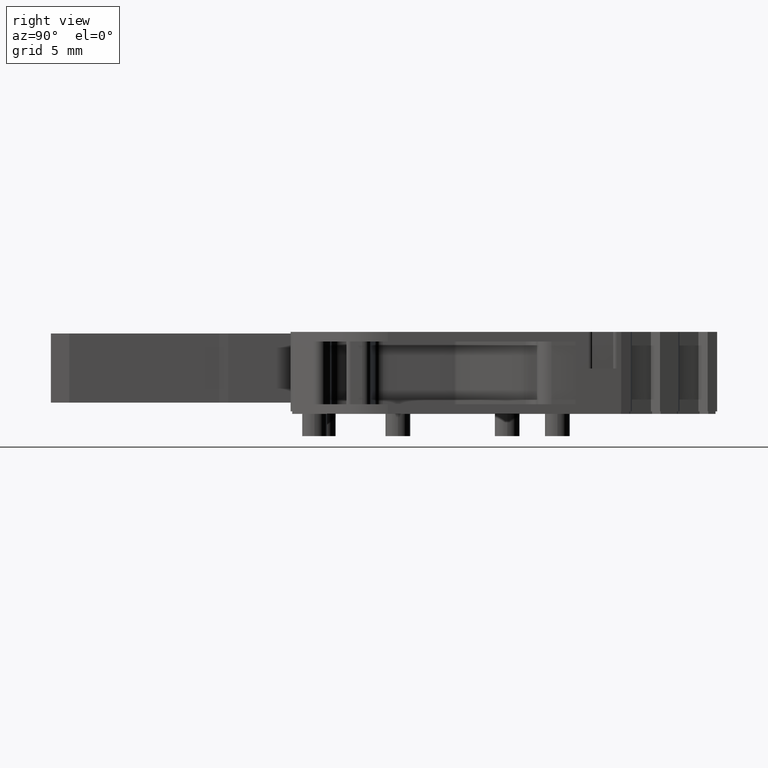
[diagram: clean part render]
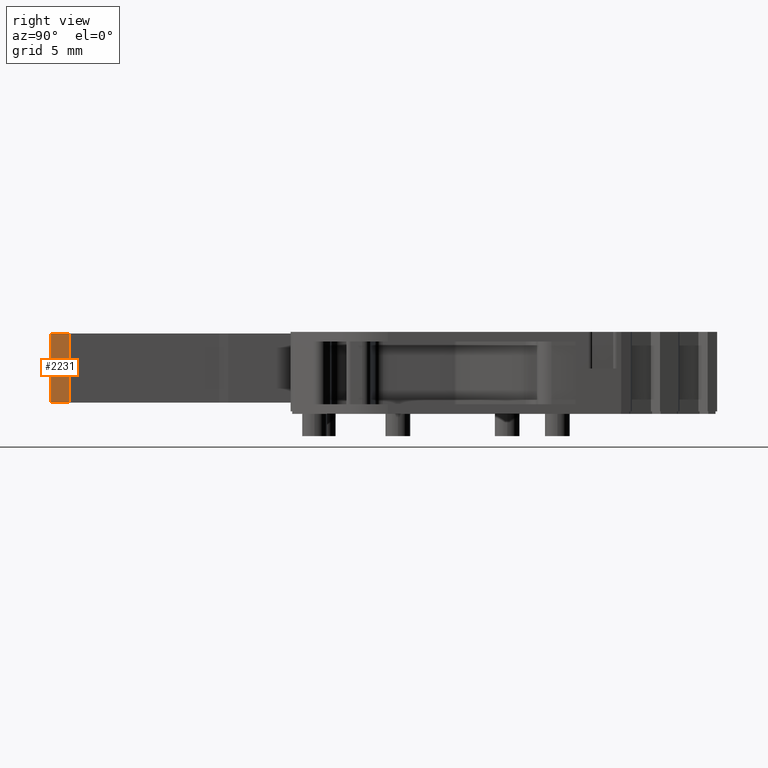
[diagram: same view with one face highlighted and labeled with its STEP entity id]
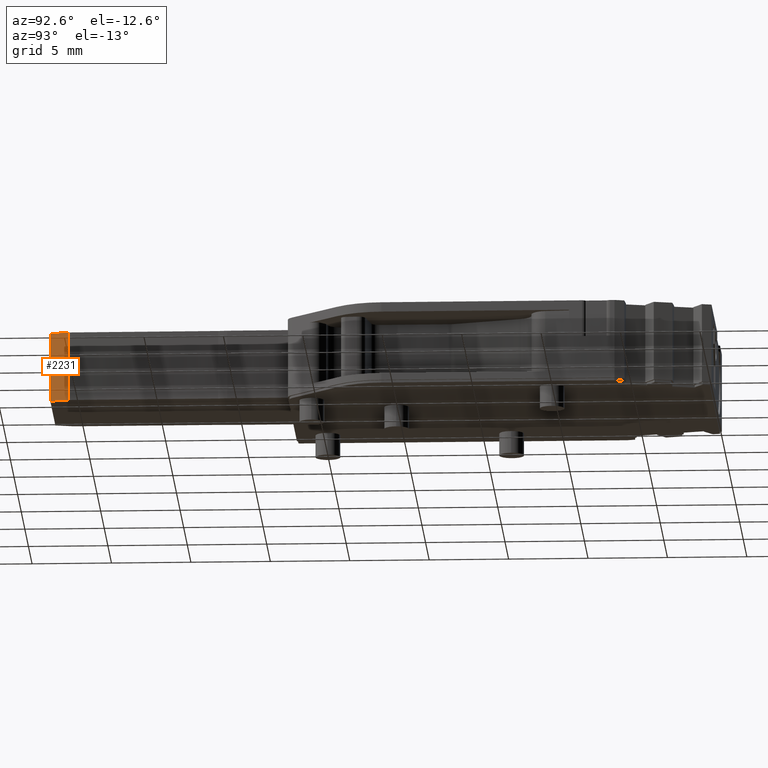
[diagram: same view with one face highlighted and labeled with its STEP entity id]
A machine part, right view. The second image highlights one B-rep face of the part: STEP entity #2231.
A second angle (auxiliary view) of the same face is appended — the face is thin or edge-on in the first view.
In plain terms, the highlighted planar face has unit normal (0.968, -0.251, 0).
Its self-contained STEP definition (entity closure, byte-faithful):
#77 = ORIENTED_EDGE ( 'NONE', *, *, #4832, .F. ) ;
#121 = CARTESIAN_POINT ( 'NONE',  ( -15.39598760276528100, -6.134233771461151900, 2.055851566870937400 ) ) ;
#205 = CARTESIAN_POINT ( 'NONE',  ( -15.39598760276528100, -6.134233771461152800, 2.055851566870937000 ) ) ;
#277 = LINE ( 'NONE', #8834, #2791 ) ;
#314 = AXIS2_PLACEMENT_3D ( 'NONE', #2448, #5937, #1787 ) ;
#363 = LINE ( 'NONE', #205, #6353 ) ;
#1006 = LINE ( 'NONE', #2524, #6963 ) ;
#1408 = ORIENTED_EDGE ( 'NONE', *, *, #8119, .T. ) ;
#1787 = DIRECTION ( 'NONE',  ( 0.2509641976593554600, 0.9679963695661238900, 0.0000000000000000000 ) ) ;
#2231 = ADVANCED_FACE ( 'NONE', ( #4501 ), #2369, .T. ) ;
#2369 = PLANE ( 'NONE',  #314 ) ;
#2448 = CARTESIAN_POINT ( 'NONE',  ( -15.39598760276528100, -6.134233771461152800, 2.055851566870937000 ) ) ;
#2451 = VERTEX_POINT ( 'NONE', #121 ) ;
#2524 = CARTESIAN_POINT ( 'NONE',  ( -15.39598760276528100, -6.134233771461152800, 2.055851566870937400 ) ) ;
#2791 = VECTOR ( 'NONE', #8804, 1000.000000000000000 ) ;
#2970 = ORIENTED_EDGE ( 'NONE', *, *, #5114, .F. ) ;
#3130 = LINE ( 'NONE', #7396, #8287 ) ;
#3953 = DIRECTION ( 'NONE',  ( 0.2509641976593554600, 0.9679963695661238900, 0.0000000000000000000 ) ) ;
#4447 = DIRECTION ( 'NONE',  ( 0.0000000000000000000, 0.0000000000000000000, -1.000000000000000000 ) ) ;
#4501 = FACE_OUTER_BOUND ( 'NONE', #5392, .T. ) ;
#4510 = VERTEX_POINT ( 'NONE', #8932 ) ;
#4832 = EDGE_CURVE ( 'NONE', #2451, #5200, #363, .T. ) ;
#5049 = CARTESIAN_POINT ( 'NONE',  ( -15.39598760276528100, -6.134233771461151900, -2.294148433129062700 ) ) ;
#5114 = EDGE_CURVE ( 'NONE', #7660, #4510, #277, .T. ) ;
#5200 = VERTEX_POINT ( 'NONE', #5049 ) ;
#5290 = DIRECTION ( 'NONE',  ( -0.2509641976593554600, -0.9679963695661238900, -0.0000000000000000000 ) ) ;
#5392 = EDGE_LOOP ( 'NONE', ( #5646, #77, #1408, #2970 ) ) ;
#5480 = EDGE_CURVE ( 'NONE', #7660, #5200, #3130, .T. ) ;
#5646 = ORIENTED_EDGE ( 'NONE', *, *, #5480, .T. ) ;
#5937 = DIRECTION ( 'NONE',  ( 0.9679963695661238900, -0.2509641976593554600, 0.0000000000000000000 ) ) ;
#6353 = VECTOR ( 'NONE', #4447, 1000.000000000000000 ) ;
#6674 = CARTESIAN_POINT ( 'NONE',  ( -15.69598760276635700, -7.291366595901118700, -2.294148433129062700 ) ) ;
#6963 = VECTOR ( 'NONE', #5290, 1000.000000000000000 ) ;
#7396 = CARTESIAN_POINT ( 'NONE',  ( -15.39598760276528100, -6.134233771461152800, -2.294148433129062700 ) ) ;
#7660 = VERTEX_POINT ( 'NONE', #6674 ) ;
#8119 = EDGE_CURVE ( 'NONE', #2451, #4510, #1006, .T. ) ;
#8287 = VECTOR ( 'NONE', #3953, 1000.000000000000000 ) ;
#8804 = DIRECTION ( 'NONE',  ( -0.0000000000000000000, 0.0000000000000000000, 1.000000000000000000 ) ) ;
#8834 = CARTESIAN_POINT ( 'NONE',  ( -15.69598760276635700, -7.291366595901118700, 2.055851566870937000 ) ) ;
#8932 = CARTESIAN_POINT ( 'NONE',  ( -15.69598760276635700, -7.291366595901118700, 2.055851566870937400 ) ) ;